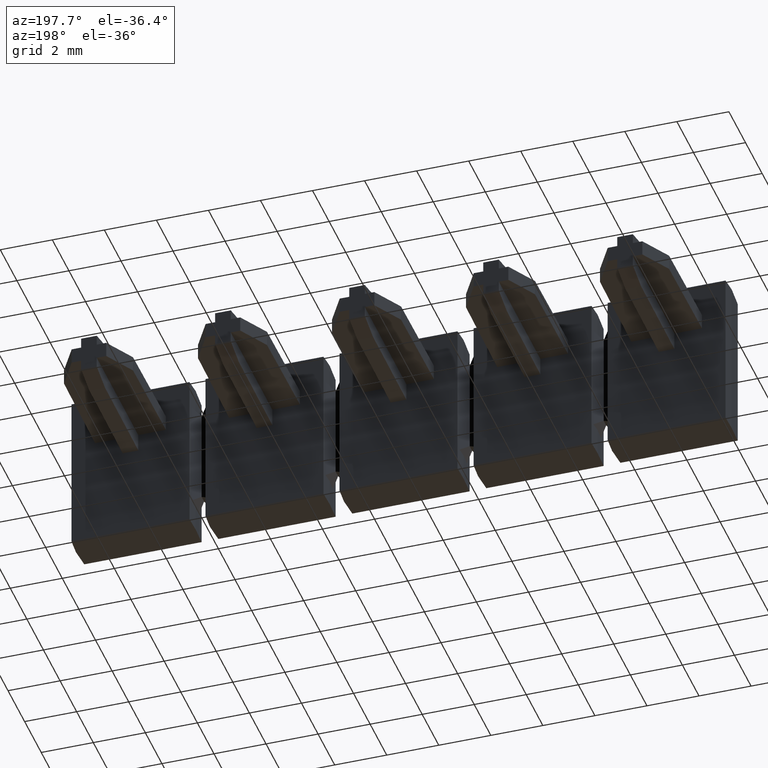
[diagram: clean part render]
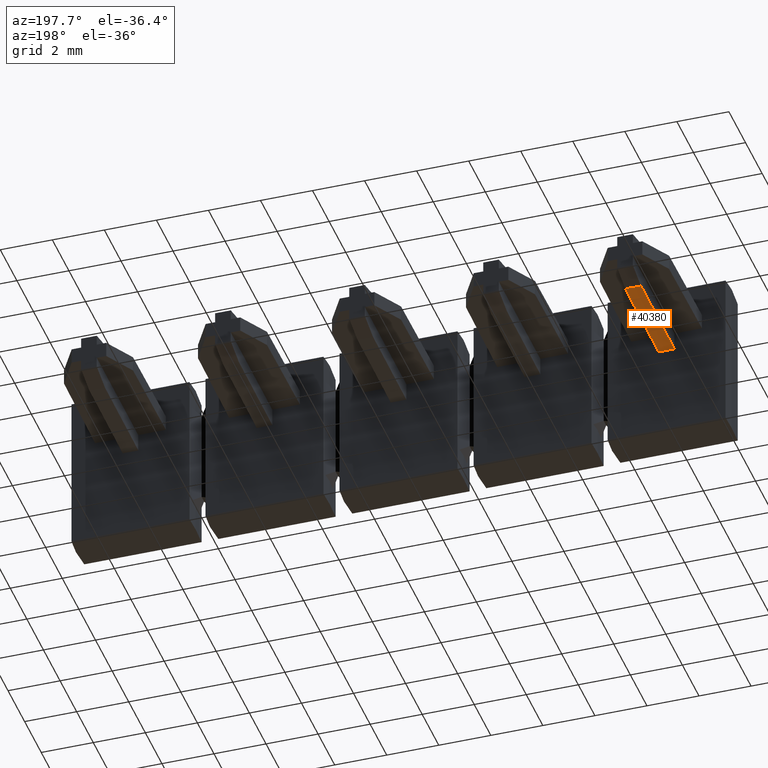
[diagram: same view with one face highlighted and labeled with its STEP entity id]
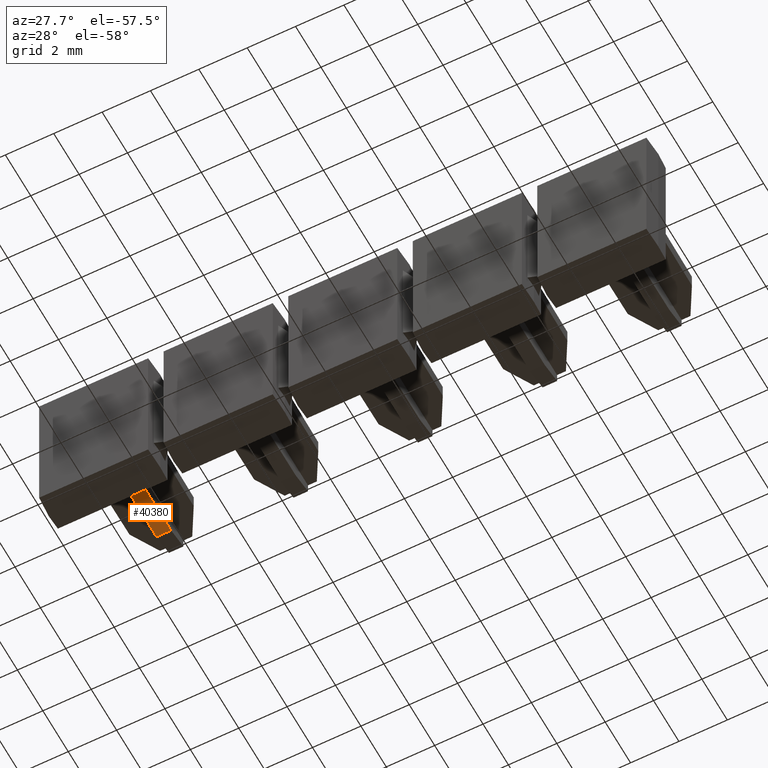
[diagram: same view with one face highlighted and labeled with its STEP entity id]
A machine part, auxiliary view. The second image highlights one B-rep face of the part: STEP entity #40380.
A second angle (auxiliary view) of the same face is appended — the face is thin or edge-on in the first view.
In plain terms, the highlighted planar face has unit normal (-0, 0.0087, -1).
Its self-contained STEP definition (entity closure, byte-faithful):
#6090=CARTESIAN_POINT('',(19.0826155596203,-1.75488071210555,
53.6700000000704));
#6100=DIRECTION('',(2.67102238719685E-12,4.83725757564416E-15,-1.));
#6110=VECTOR('',#6100,1.);
#6120=LINE('',#6090,#6110);
#6130=CARTESIAN_POINT('',(19.0826155596264,-1.75488071210554,
51.3949999999941));
#6140=VERTEX_POINT('',#6130);
#6150=CARTESIAN_POINT('',(19.082615559628,-1.75488071210554,
50.7949999999941));
#6160=VERTEX_POINT('',#6150);
#6170=EDGE_CURVE('',#6140,#6160,#6120,.T.);
#35570=CARTESIAN_POINT('',(19.1177358665687,2.26950785552263,
51.3949999999942));
#35580=VERTEX_POINT('',#35570);
#35610=CARTESIAN_POINT('',(18.8698928215537,-26.1304921377397,
51.3949999999935));
#35620=DIRECTION('',(0.00872653549190324,0.999961923064228,
2.34203843151264E-14));
#35630=VECTOR('',#35620,1.);
#35640=LINE('',#35610,#35630);
#35650=EDGE_CURVE('',#6140,#35580,#35640,.T.);
#40150=CARTESIAN_POINT('',(19.1001757130983,0.257313571708483,
51.0949999999942));
#40160=DIRECTION('',(0.999961923064228,-0.00872653549190324,
2.67087847034905E-12));
#40170=DIRECTION('',(-0.00872653549190324,-0.999961923064228,
3.85082708148748E-13));
#40180=AXIS2_PLACEMENT_3D('',#40150,#40160,#40170);
#40190=PLANE('',#40180);
#40200=ORIENTED_EDGE('',*,*,#35650,.F.);
#40210=CARTESIAN_POINT('',(19.1177358665626,2.26950785552356,
53.6700000000688));
#40220=DIRECTION('',(2.66741615513598E-12,-4.08396006638926E-13,-1.));
#40230=VECTOR('',#40220,1.);
#40240=LINE('',#40210,#40230);
#40250=CARTESIAN_POINT('',(19.1177358665703,2.26950785552239,
50.7949999999942));
#40260=VERTEX_POINT('',#40250);
#40270=EDGE_CURVE('',#35580,#40260,#40240,.T.);
#40280=ORIENTED_EDGE('',*,*,#40270,.F.);
#40290=CARTESIAN_POINT('',(18.8698928215553,-26.1304921377399,
50.7949999999935));
#40300=DIRECTION('',(-0.00872653549190324,-0.999961923064228,
-2.34203843151264E-14));
#40310=VECTOR('',#40300,1.);
#40320=LINE('',#40290,#40310);
#40330=EDGE_CURVE('',#40260,#6160,#40320,.T.);
#40340=ORIENTED_EDGE('',*,*,#40330,.F.);
#40350=ORIENTED_EDGE('',*,*,#6170,.T.);
#40360=EDGE_LOOP('',(#40350,#40340,#40280,#40200));
#40370=FACE_OUTER_BOUND('',#40360,.T.);
#40380=ADVANCED_FACE('',(#40370),#40190,.T.);